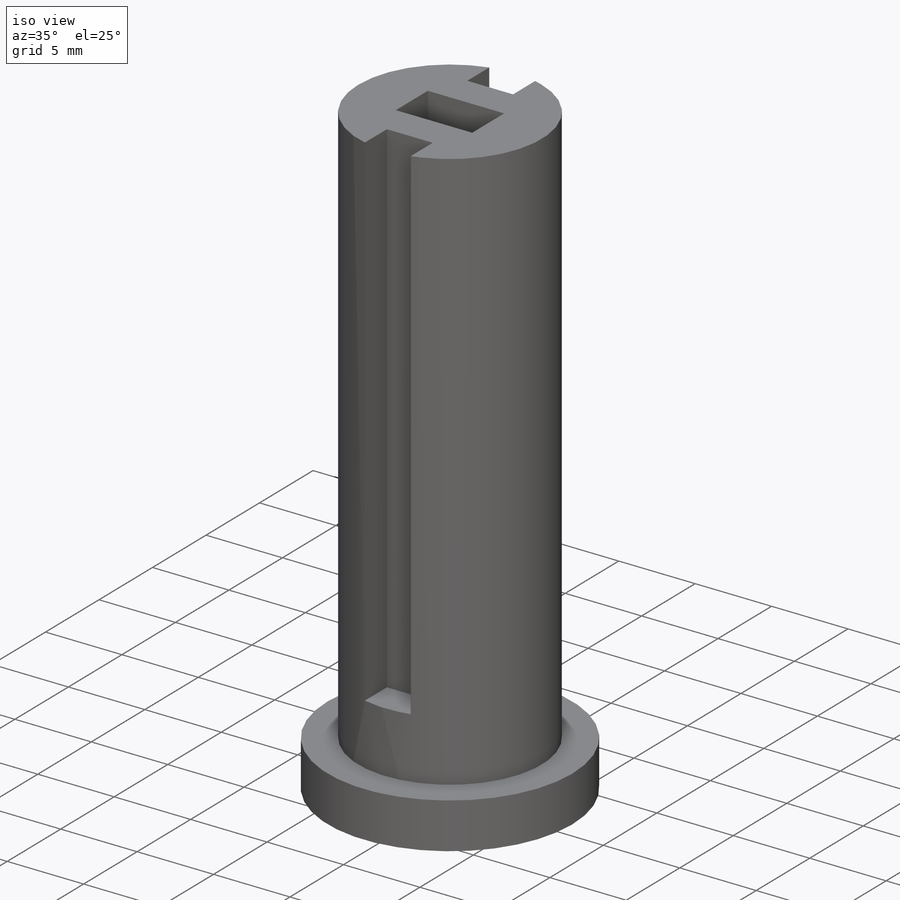
[diagram: iso view]
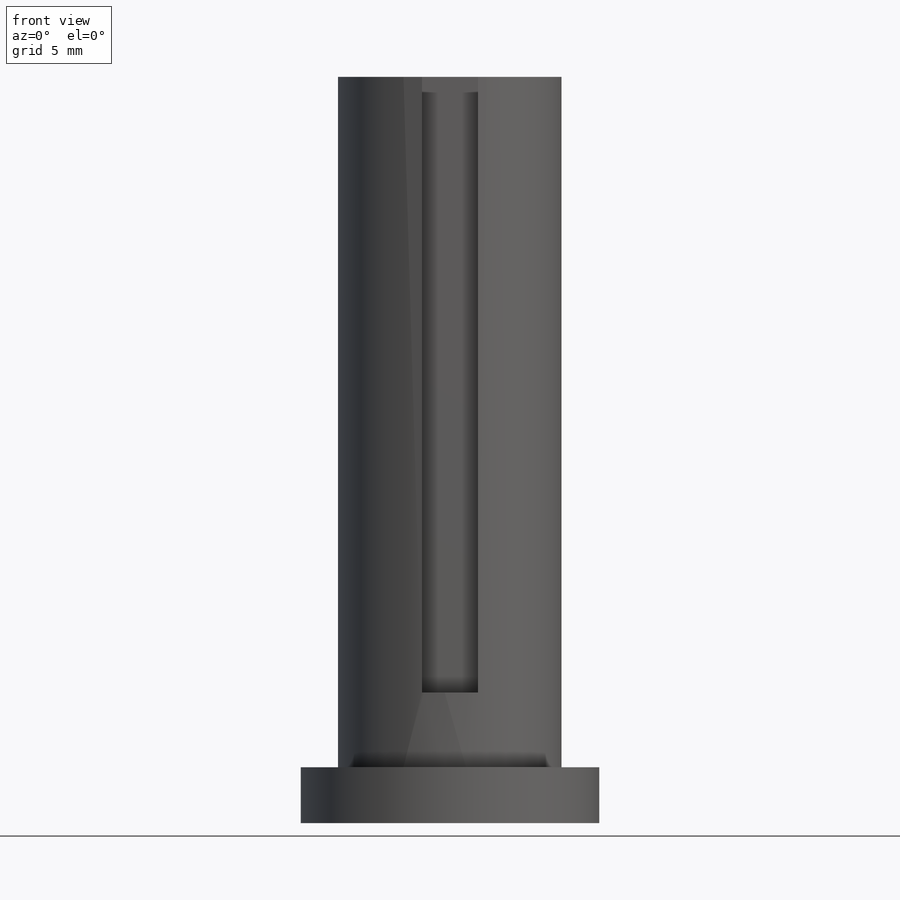
[diagram: front view]
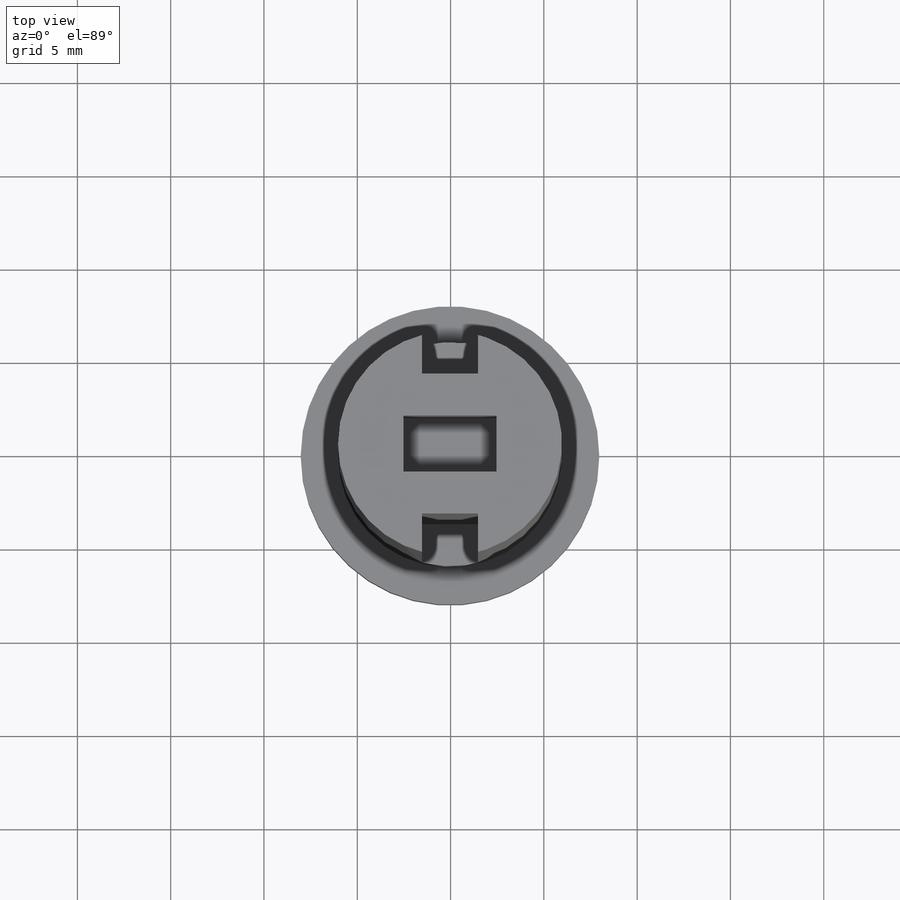
[diagram: top view]
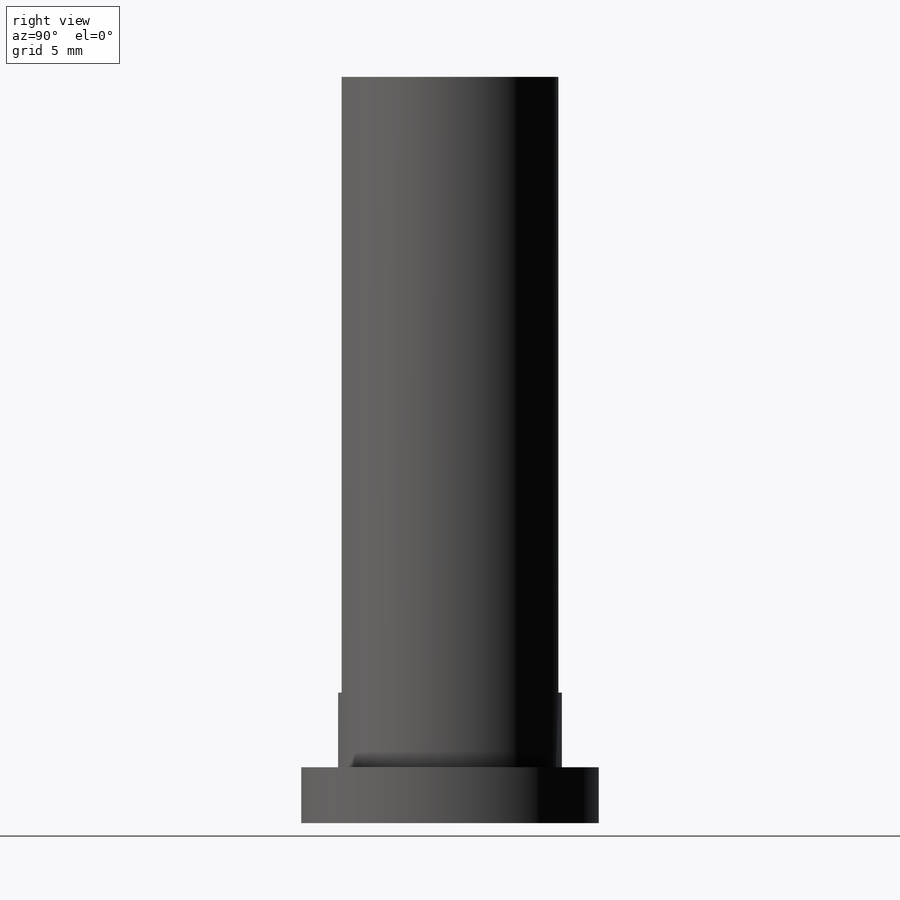
[diagram: right view]
SOLIDWORKS PART (.sldprt)
format: sldprt  version: not decoded by parser v0  size: 185,856 bytes
history: native  units: mm
features: plane x3, sketch x3, cut_extrude x2, material x1, revolve x1 (+10 scaffold rows collapsed)
feature tree (20):
  scaffold x10  (default folders/planes/origin — collapsed)
  material  "Matériau <non spécifié>"
  plane  "Plan de face"
  plane  "Plan de dessus"
  plane  "Plan de droite"
  sketch  "Esquisse4"  dims[c1.D1=4.5mm c1.D2=7.0mm c1.D3=5.0mm c1.D4=6.0mm c1.D5=4.0mm c1.D6=5.5mm c2.D5=7.5mm c2.D6=2.5mm c2.D7=7.0mm c2.D8=4.0mm c2.D1=8.0mm c2.D2=6.0mm c2.D3=3.0mm c2.D4=37.0mm]
  revolve  "Révolution1"  Angle=360deg
  sketch  "Esquisse9"  dims[D1=3.0mm D2=5.0mm D3=1.0mm]
  cut_extrude  "Enlèv. mat.-Extru.4"  Depth=8mm
  sketch  "Esquisse11"  dims[c1.D1=3.75mm c1.D2=2.25mm c1.D3=2.25mm c1.D4=~2.039968mm c1.D5=1.5mm c1.D6=~0.539968mm c2.D4=1.5mm]
  cut_extrude  "Enlèv. mat.-Extru.5"  Depth=33mm
decode coverage: 6 of 6 modeling features carry decoded parameters
note: ~ marks probable driven/reference dimensions
note: suppression state not decoded; provenance and decode notes live in map.json
